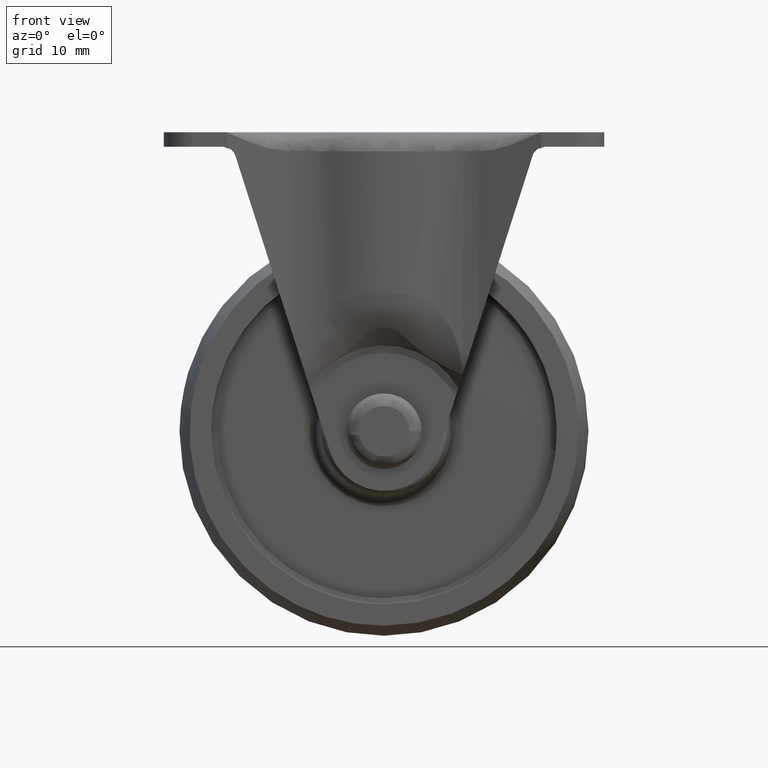
[diagram: clean part render]
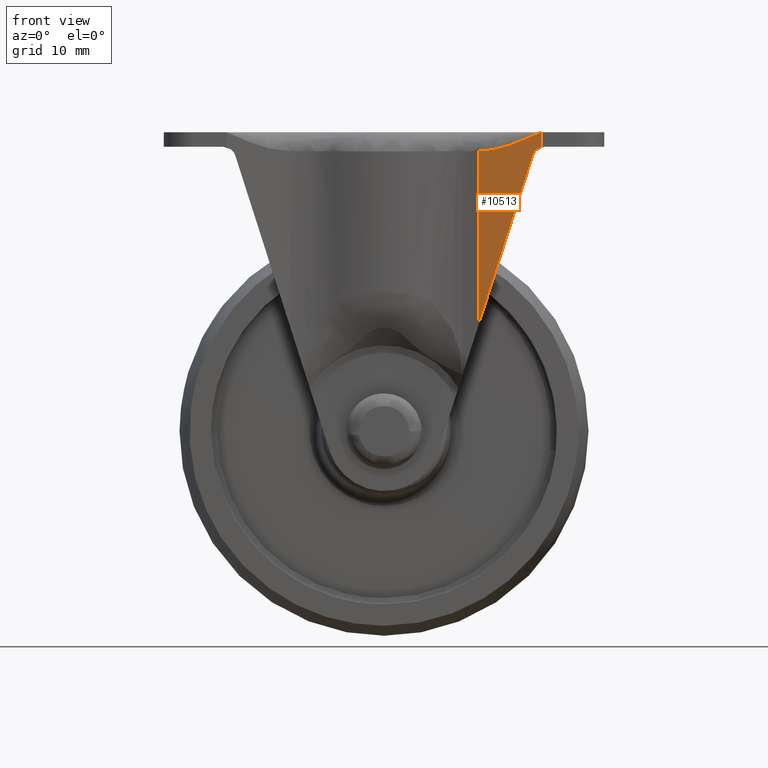
[diagram: same view with one face highlighted and labeled with its STEP entity id]
A machine part, front view. The second image highlights one B-rep face of the part: STEP entity #10513.
In plain terms, the highlighted face is a freeform B-spline surface patch.
Its self-contained STEP definition (entity closure, byte-faithful):
#5298=CARTESIAN_POINT('',(15.000443000000001,-20.917632999999899,44.500000000000000));
#5299=VERTEX_POINT('',#5298);
#5311=CARTESIAN_POINT('',(25.000077084118399,-23.500000000000000,47.500000000000000));
#5312=VERTEX_POINT('',#5311);
#5313=CARTESIAN_POINT('',(25.000077084118399,-23.500000000000000,47.500000000000000));
#5314=CARTESIAN_POINT('',(21.666865722745602,-22.639211000000000,46.0));
#5315=CARTESIAN_POINT('',(18.333654361372801,-21.778421999999949,44.500000000000000));
#5316=CARTESIAN_POINT('',(15.000443000000001,-20.917632999999899,44.500000000000000));
#5317=QUASI_UNIFORM_CURVE('',3,(#5313,#5314,#5315,#5316),.UNSPECIFIED.,.F.,.U.);
#5318=EDGE_CURVE('',#5312,#5299,#5317,.T.);
#6030=CARTESIAN_POINT('',(23.649716748483101,-23.151274642699999,43.873724283606599));
#6031=VERTEX_POINT('',#6030);
#6032=CARTESIAN_POINT('',(25.000077084118399,-23.500000000000000,45.092041824653208));
#6033=VERTEX_POINT('',#6032);
#6034=CARTESIAN_POINT('',(23.649716748483101,-23.151274642699999,43.873724283606599));
#6035=CARTESIAN_POINT('',(23.699123502053489,-23.164033746575580,44.028114719537747));
#6036=CARTESIAN_POINT('',(23.768601621003612,-23.181976203278442,44.171510530605218));
#6037=CARTESIAN_POINT('',(23.879852071343379,-23.210706203724040,44.337388010015253));
#6038=CARTESIAN_POINT('',(23.903430755206891,-23.216795308045299,44.370007330418822));
#6039=CARTESIAN_POINT('',(23.952542429699189,-23.229478208885151,44.433199570527201));
#6040=CARTESIAN_POINT('',(23.978048130397909,-23.236064957884370,44.463760104529442));
#6041=CARTESIAN_POINT('',(24.057283508752811,-23.256527189259529,44.552478113220083));
#6042=CARTESIAN_POINT('',(24.113723645374119,-23.271102637226790,44.607680517376487));
#6043=CARTESIAN_POINT('',(24.203449689871778,-23.294274042740451,44.684961105768011));
#6044=CARTESIAN_POINT('',(24.234204765675418,-23.302216422648701,44.709798522803773));
#6045=CARTESIAN_POINT('',(24.297370253565699,-23.318528666686301,44.757668630985513));
#6046=CARTESIAN_POINT('',(24.329820837123101,-23.326908904943451,44.780717841702710));
#6047=CARTESIAN_POINT('',(24.428308807398491,-23.352343044052610,44.846386345936693));
#6048=CARTESIAN_POINT('',(24.495880279945482,-23.369793116663161,44.885863401149017));
#6049=CARTESIAN_POINT('',(24.703686287597879,-23.423458218010779,44.992843573880442));
#6050=CARTESIAN_POINT('',(24.848967341634570,-23.460976490830951,45.048997063414987));
#6051=CARTESIAN_POINT('',(25.000077084118399,-23.500000000000000,45.092041824653208));
#6052=B_SPLINE_CURVE_WITH_KNOTS('',3,(#6034,#6035,#6036,#6037,#6038,#6039,#6040,#6041,#6042,#6043,#6044,#6045,#6046,#6047,#6048,#6049,#6050,#6051),.UNSPECIFIED.,.F.,.U.,(4,2,2,2,2,2,2,2,4),(0.0,0.250000000000002,0.312499999999998,0.374999999999994,0.499999999999983,0.562499999999981,0.624999999999979,0.749999999999986,1.0),.UNSPECIFIED.);
#6053=EDGE_CURVE('',#6031,#6033,#6052,.T.);
#10479=CARTESIAN_POINT('',(25.000077084118399,-23.500000000000000,45.092041824653208));
#10480=CARTESIAN_POINT('',(25.000077084118399,-23.500000000000000,47.500000000000000));
#10481=QUASI_UNIFORM_CURVE('',1,(#10479,#10480),.UNSPECIFIED.,.F.,.U.);
#10482=EDGE_CURVE('',#6033,#5312,#10481,.T.);
#10491=CARTESIAN_POINT('',(14.500961801952281,-20.788643903788120,15.314554966798140));
#10492=CARTESIAN_POINT('',(25.499558282166120,-23.628989096211761,15.314554966798140));
#10493=CARTESIAN_POINT('',(14.500961801952281,-20.788643903788120,49.031181278418401));
#10494=CARTESIAN_POINT('',(25.499558282166120,-23.628989096211761,49.031181278418401));
#10495=B_SPLINE_SURFACE_WITH_KNOTS('',1,1,((#10491,#10493),(#10492,#10494)),.UNSPECIFIED.,.F.,.F.,.U.,(2,2),(2,2),(0.0,11.359431559136061),(0.0,33.716626311620260),.UNSPECIFIED.);
#10496=ORIENTED_EDGE('',*,*,#10482,.T.);
#10497=ORIENTED_EDGE('',*,*,#5318,.T.);
#10498=CARTESIAN_POINT('',(15.000443000000001,-20.917632999999899,16.845736245216550));
#10499=VERTEX_POINT('',#10498);
#10500=CARTESIAN_POINT('',(15.000443000000001,-20.917632999999899,16.845736245216550));
#10501=CARTESIAN_POINT('',(15.000443000000001,-20.917632999999899,44.500000000000000));
#10502=QUASI_UNIFORM_CURVE('',1,(#10500,#10501),.UNSPECIFIED.,.F.,.U.);
#10503=EDGE_CURVE('',#10499,#5299,#10502,.T.);
#10504=ORIENTED_EDGE('',*,*,#10503,.F.);
#10505=CARTESIAN_POINT('',(15.000443000000001,-20.917632999999899,16.845736245216550));
#10506=CARTESIAN_POINT('',(23.649716748483101,-23.151274642699999,43.873724283606599));
#10507=QUASI_UNIFORM_CURVE('',1,(#10505,#10506),.UNSPECIFIED.,.F.,.U.);
#10508=EDGE_CURVE('',#10499,#6031,#10507,.T.);
#10509=ORIENTED_EDGE('',*,*,#10508,.T.);
#10510=ORIENTED_EDGE('',*,*,#6053,.T.);
#10511=EDGE_LOOP('',(#10496,#10497,#10504,#10509,#10510));
#10512=FACE_OUTER_BOUND('',#10511,.T.);
#10513=ADVANCED_FACE('',(#10512),#10495,.T.);